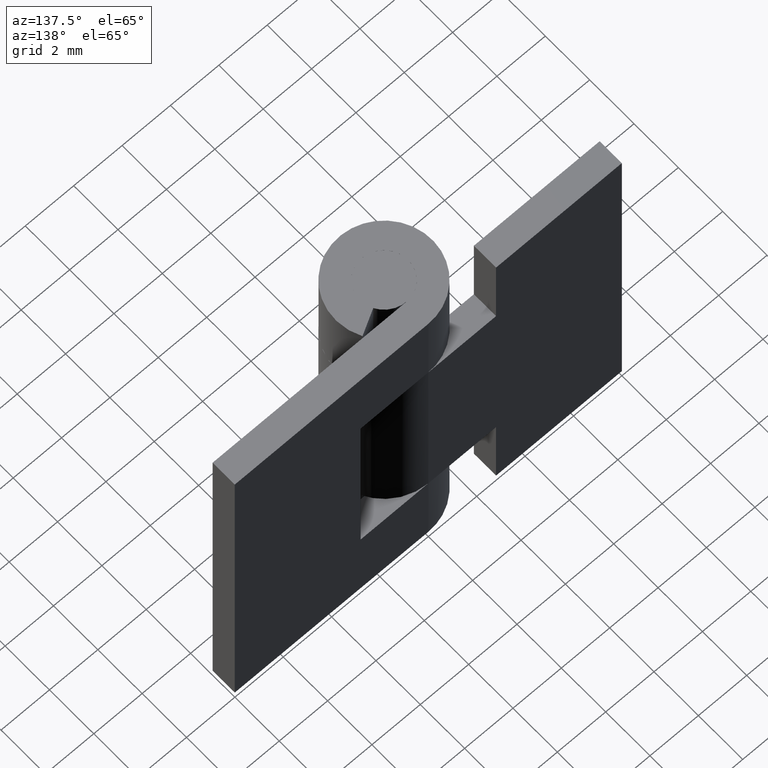
[diagram: clean part render]
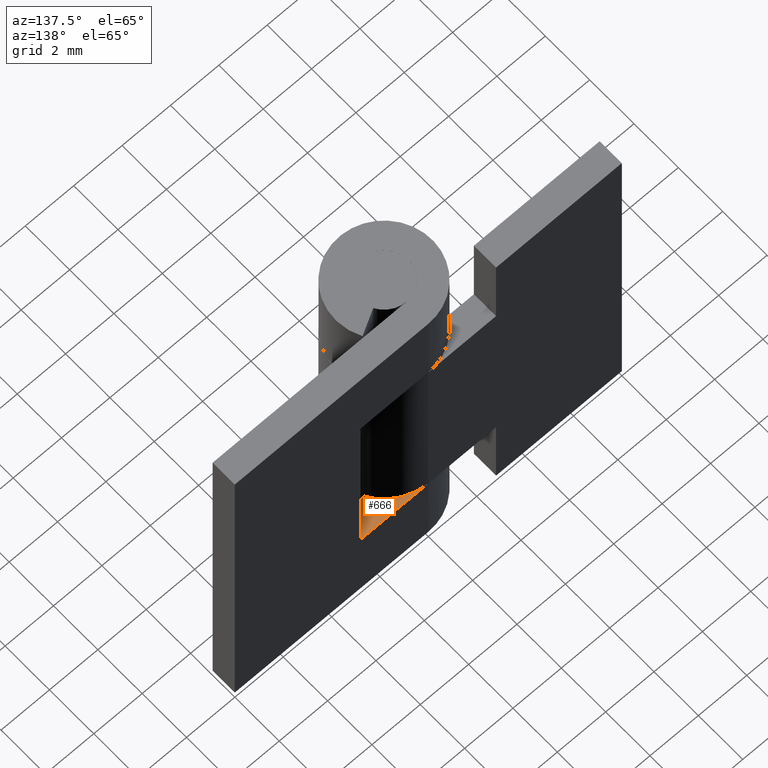
[diagram: same view with one face highlighted and labeled with its STEP entity id]
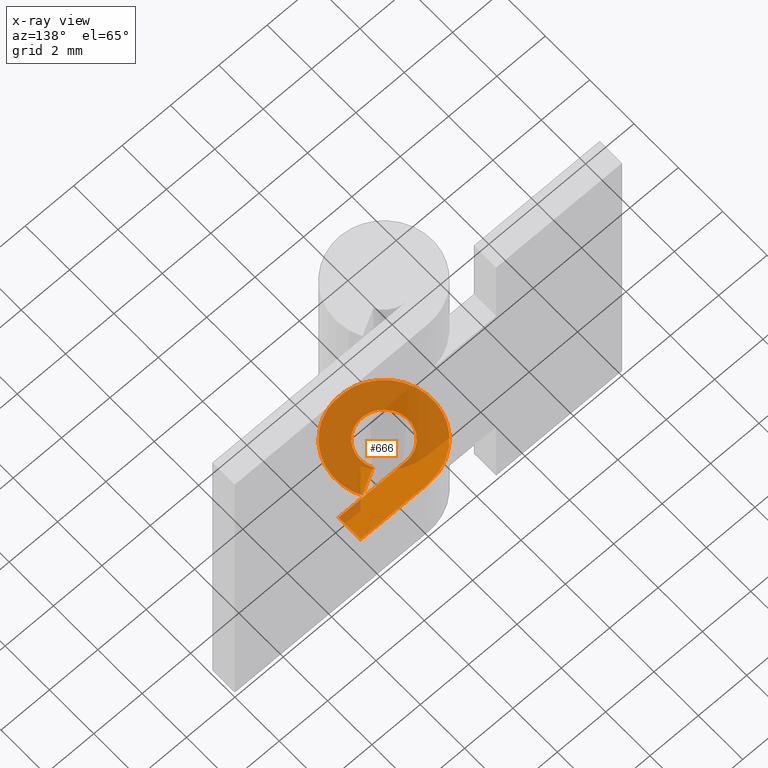
[diagram: x-ray of the same camera — body ghosted, the highlighted face saturated]
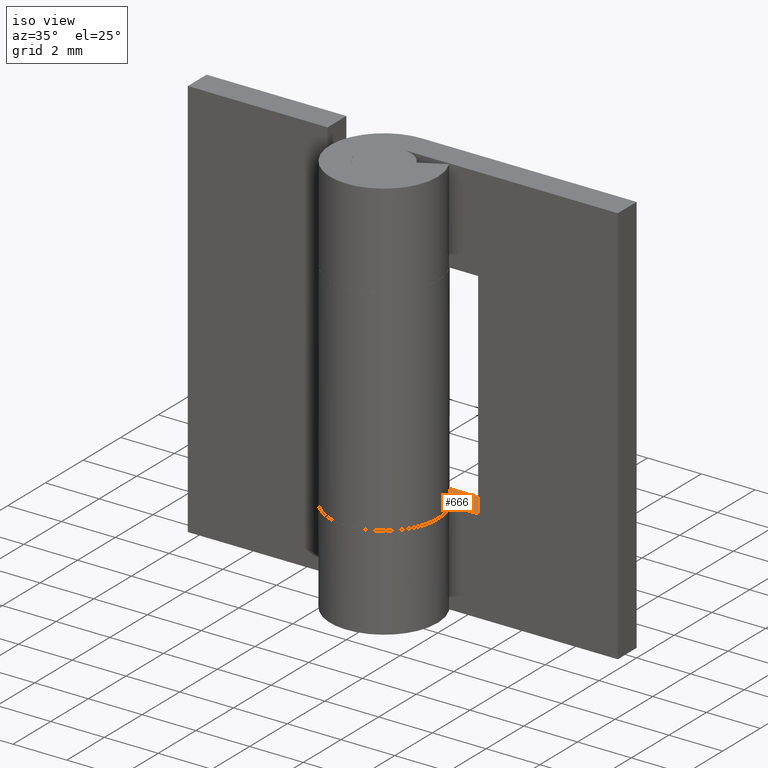
[diagram: same view with one face highlighted and labeled with its STEP entity id]
A machine part, auxiliary view. The second image highlights one B-rep face of the part: STEP entity #666.
The next image is the same camera in x-ray: the body ghosted, the highlighted face saturated — about 67% of this face is hidden behind the body in this view.
A second angle (iso view) of the same face is appended — the face is thin or edge-on in the first view.
In plain terms, the highlighted face is a freeform B-spline surface patch.
Its self-contained STEP definition (entity closure, byte-faithful):
#496=CARTESIAN_POINT('',(2.800003000000000,1.0,3.500000000000000));
#497=VERTEX_POINT('',#496);
#512=CARTESIAN_POINT('',(2.800003000000000,2.0,3.500000000000000));
#513=VERTEX_POINT('',#512);
#519=CARTESIAN_POINT('',(2.800003000000000,1.0,3.500000000000000));
#520=CARTESIAN_POINT('',(2.800003000000000,2.0,3.500000000000000));
#521=QUASI_UNIFORM_CURVE('',1,(#519,#520),.UNSPECIFIED.,.F.,.U.);
#522=EDGE_CURVE('',#497,#513,#521,.T.);
#597=CARTESIAN_POINT('',(3.039759524584510,-2.199490103180252,3.500000000000000));
#598=CARTESIAN_POINT('',(-2.239682371725495,-2.199490103180252,3.500000000000000));
#599=CARTESIAN_POINT('',(3.039759524584510,2.199785356960570,3.500000000000000));
#600=CARTESIAN_POINT('',(-2.239682371725495,2.199785356960570,3.500000000000000));
#601=B_SPLINE_SURFACE_WITH_KNOTS('',1,1,((#597,#599),(#598,#600)),.UNSPECIFIED.,.F.,.F.,.U.,(2,2),(2,2),(0.0,5.279441896310005),(0.0,4.399275460140823),.UNSPECIFIED.);
#602=CARTESIAN_POINT('',(0.0,2.0,3.500000000000000));
#603=VERTEX_POINT('',#602);
#604=CARTESIAN_POINT('',(1.759971590679805,0.950000000000000,3.499999999999950));
#605=VERTEX_POINT('',#604);
#606=CARTESIAN_POINT('',(0.0,2.0,3.500000000000000));
#607=CARTESIAN_POINT('',(-1.523311426391113,2.000000000000000,3.499999999999951));
#608=CARTESIAN_POINT('',(-1.928096575312494,0.531454227820452,3.499999999999950));
#609=CARTESIAN_POINT('',(-2.332881724233873,-0.937091544359094,3.499999999999951));
#610=CARTESIAN_POINT('',(-1.024695076595961,-1.717556403731766,3.499999999999950));
#611=CARTESIAN_POINT('',(0.283491571041951,-2.498021263104438,3.499999999999951));
#612=CARTESIAN_POINT('',(1.383518044628767,-1.444256840103794,3.499999999999950));
#613=CARTESIAN_POINT('',(2.483544518215582,-0.390492417103149,3.499999999999951));
#614=CARTESIAN_POINT('',(1.759971590679806,0.949999999999997,3.499999999999950));
#622=(BOUNDED_CURVE()B_SPLINE_CURVE(2,(#606,#607,#608,#609,#610,#611,#612,#613,#614),.UNSPECIFIED.,.F.,.U.)B_SPLINE_CURVE_WITH_KNOTS((3,2,2,2,3),(0.0,0.250000000000000,0.500000000000000,0.750000000000000,1.0),.UNSPECIFIED.)CURVE()GEOMETRIC_REPRESENTATION_ITEM()RATIONAL_B_SPLINE_CURVE((1.0,0.795527219493534,1.0,0.795527219493534,1.0,0.795527219493534,1.0,0.795527219493534,1.0))REPRESENTATION_ITEM(''));
#623=EDGE_CURVE('',#603,#605,#622,.T.);
#624=ORIENTED_EDGE('',*,*,#623,.T.);
#625=CARTESIAN_POINT('',(0.879985795339902,0.475000000000000,3.499999999999950));
#626=VERTEX_POINT('',#625);
#627=CARTESIAN_POINT('',(1.759971590679805,0.950000000000000,3.499999999999950));
#628=CARTESIAN_POINT('',(0.879985795339902,0.475000000000000,3.499999999999950));
#629=QUASI_UNIFORM_CURVE('',1,(#627,#628),.UNSPECIFIED.,.F.,.U.);
#630=EDGE_CURVE('',#605,#626,#629,.T.);
#631=ORIENTED_EDGE('',*,*,#630,.T.);
#632=CARTESIAN_POINT('',(0.0,1.0,3.499999999999950));
#633=VERTEX_POINT('',#632);
#634=CARTESIAN_POINT('',(0.0,1.0,3.499999999999950));
#635=CARTESIAN_POINT('',(-0.761655713195556,1.0,3.499999999999951));
#636=CARTESIAN_POINT('',(-0.964048287656247,0.265727113910226,3.499999999999950));
#637=CARTESIAN_POINT('',(-1.166440862116937,-0.468545772179547,3.499999999999951));
#638=CARTESIAN_POINT('',(-0.512347538297981,-0.858778201865883,3.499999999999950));
#639=CARTESIAN_POINT('',(0.141745785520976,-1.249010631552219,3.499999999999951));
#640=CARTESIAN_POINT('',(0.691759022314383,-0.722128420051897,3.499999999999950));
#641=CARTESIAN_POINT('',(1.241772259107791,-0.195246208551574,3.499999999999951));
#642=CARTESIAN_POINT('',(0.879985795339903,0.474999999999999,3.499999999999950));
#650=(BOUNDED_CURVE()B_SPLINE_CURVE(2,(#634,#635,#636,#637,#638,#639,#640,#641,#642),.UNSPECIFIED.,.F.,.U.)B_SPLINE_CURVE_WITH_KNOTS((3,2,2,2,3),(0.0,0.250000000000000,0.500000000000000,0.750000000000000,1.0),.UNSPECIFIED.)CURVE()GEOMETRIC_REPRESENTATION_ITEM()RATIONAL_B_SPLINE_CURVE((1.0,0.795527219493534,1.0,0.795527219493534,1.0,0.795527219493534,1.0,0.795527219493534,1.0))REPRESENTATION_ITEM(''));
#651=EDGE_CURVE('',#633,#626,#650,.T.);
#652=ORIENTED_EDGE('',*,*,#651,.F.);
#653=CARTESIAN_POINT('',(0.0,1.0,3.499999999999950));
#654=CARTESIAN_POINT('',(2.800003000000000,1.0,3.500000000000000));
#655=QUASI_UNIFORM_CURVE('',1,(#653,#654),.UNSPECIFIED.,.F.,.U.);
#656=EDGE_CURVE('',#633,#497,#655,.T.);
#657=ORIENTED_EDGE('',*,*,#656,.T.);
#658=ORIENTED_EDGE('',*,*,#522,.T.);
#659=CARTESIAN_POINT('',(2.800003000000000,2.0,3.500000000000000));
#660=CARTESIAN_POINT('',(0.0,2.0,3.500000000000000));
#661=QUASI_UNIFORM_CURVE('',1,(#659,#660),.UNSPECIFIED.,.F.,.U.);
#662=EDGE_CURVE('',#513,#603,#661,.T.);
#663=ORIENTED_EDGE('',*,*,#662,.T.);
#664=EDGE_LOOP('',(#624,#631,#652,#657,#658,#663));
#665=FACE_OUTER_BOUND('',#664,.T.);
#666=ADVANCED_FACE('',(#665),#601,.F.);